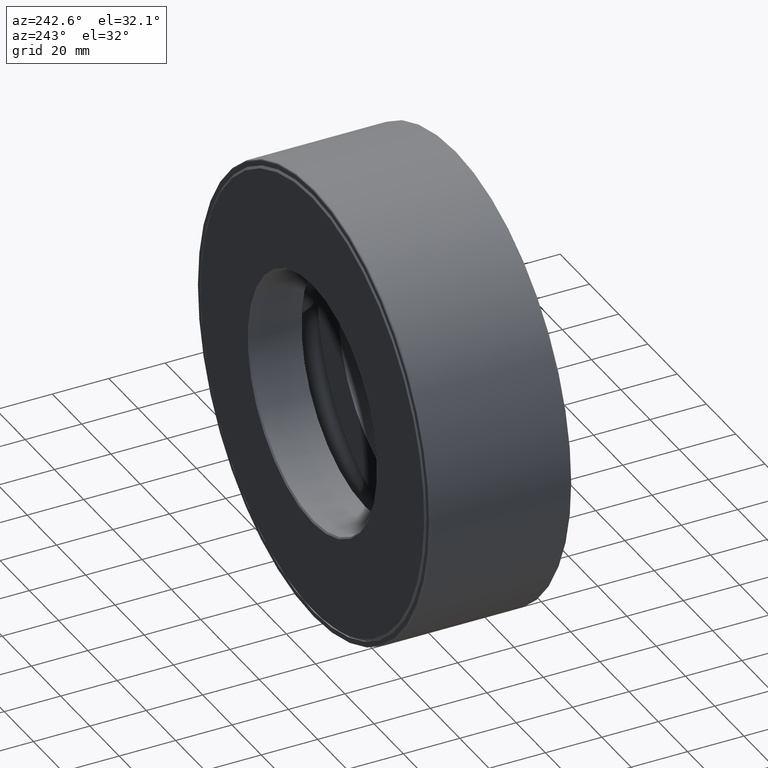
[diagram: clean part render]
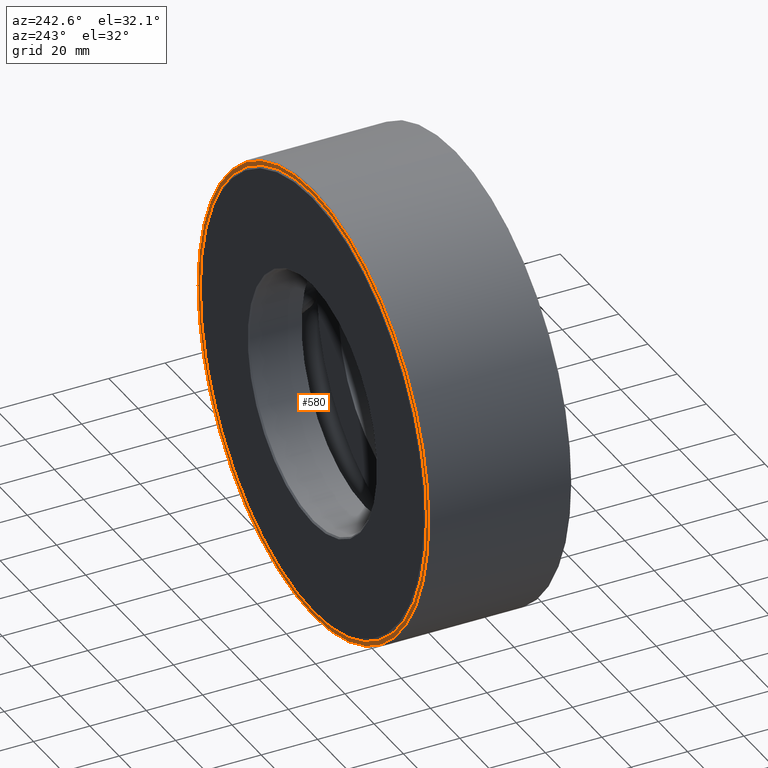
[diagram: same view with one face highlighted and labeled with its STEP entity id]
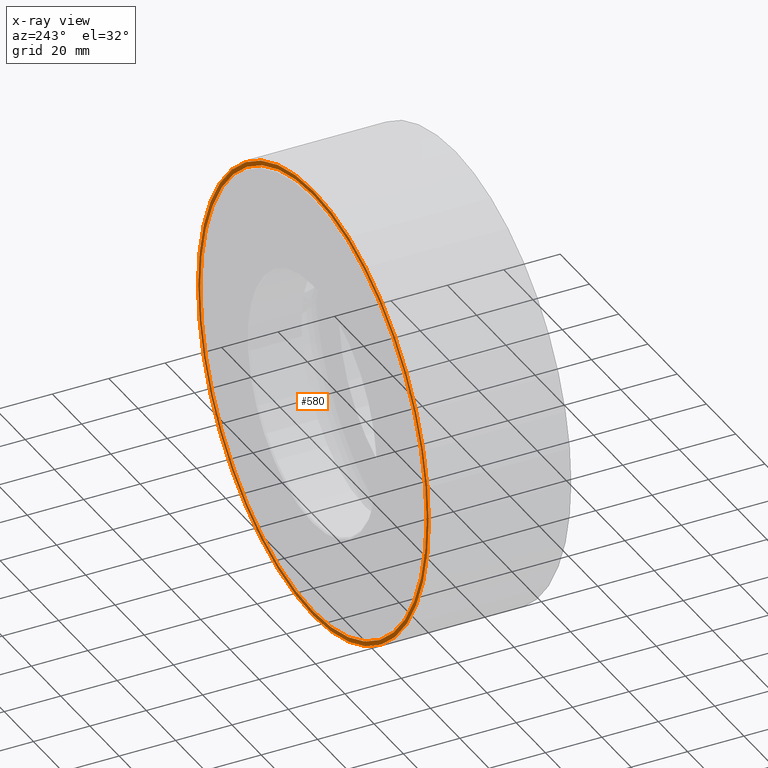
[diagram: x-ray of the same camera — body ghosted, the highlighted face saturated]
A machine part, auxiliary view. The second image highlights one B-rep face of the part: STEP entity #580.
The next image is the same camera in x-ray: the body ghosted, the highlighted face saturated — about 0% of this face is hidden behind the body in this view.
In plain terms, the highlighted planar face has unit normal (0, -1, 0).
Its self-contained STEP definition (entity closure, byte-faithful):
#14 = AXIS2_PLACEMENT_3D ( 'NONE', #451, #401, #165 ) ;
#25 = CARTESIAN_POINT ( 'NONE',  ( 0.0000000000000000000, 1.985000000000000300, 3.044999999999999900 ) ) ;
#70 = DIRECTION ( 'NONE',  ( 0.0000000000000000000, 0.0000000000000000000, 1.000000000000000000 ) ) ;
#111 = CARTESIAN_POINT ( 'NONE',  ( 0.0000000000000000000, 1.985000000000000300, 0.0000000000000000000 ) ) ;
#115 = AXIS2_PLACEMENT_3D ( 'NONE', #312, #311, #70 ) ;
#122 = PLANE ( 'NONE',  #14 ) ;
#165 = DIRECTION ( 'NONE',  ( 0.0000000000000000000, -0.0000000000000000000, -1.000000000000000000 ) ) ;
#175 = VERTEX_POINT ( 'NONE', #25 ) ;
#199 = DIRECTION ( 'NONE',  ( -0.0000000000000000000, 1.000000000000000000, -0.0000000000000000000 ) ) ;
#268 = FACE_OUTER_BOUND ( 'NONE', #274, .T. ) ;
#274 = EDGE_LOOP ( 'NONE', ( #432 ) ) ;
#310 = EDGE_LOOP ( 'NONE', ( #454 ) ) ;
#311 = DIRECTION ( 'NONE',  ( -0.0000000000000000000, 1.000000000000000000, -0.0000000000000000000 ) ) ;
#312 = CARTESIAN_POINT ( 'NONE',  ( 0.0000000000000000000, 1.985000000000000300, 0.0000000000000000000 ) ) ;
#346 = FACE_BOUND ( 'NONE', #310, .T. ) ;
#388 = CIRCLE ( 'NONE', #593, 3.044999999999999900 ) ;
#401 = DIRECTION ( 'NONE',  ( 0.0000000000000000000, -1.000000000000000000, 0.0000000000000000000 ) ) ;
#404 = CIRCLE ( 'NONE', #115, 3.105000000000000400 ) ;
#427 = VERTEX_POINT ( 'NONE', #587 ) ;
#432 = ORIENTED_EDGE ( 'NONE', *, *, #557, .T. ) ;
#451 = CARTESIAN_POINT ( 'NONE',  ( 0.0000000000000000000, 1.985000000000000300, 0.0000000000000000000 ) ) ;
#454 = ORIENTED_EDGE ( 'NONE', *, *, #528, .F. ) ;
#528 = EDGE_CURVE ( 'NONE', #175, #175, #388, .T. ) ;
#557 = EDGE_CURVE ( 'NONE', #427, #427, #404, .T. ) ;
#578 = DIRECTION ( 'NONE',  ( 0.0000000000000000000, 0.0000000000000000000, 1.000000000000000000 ) ) ;
#580 = ADVANCED_FACE ( 'NONE', ( #346, #268 ), #122, .F. ) ;
#587 = CARTESIAN_POINT ( 'NONE',  ( 0.0000000000000000000, 1.985000000000000300, 3.105000000000000400 ) ) ;
#593 = AXIS2_PLACEMENT_3D ( 'NONE', #111, #199, #578 ) ;